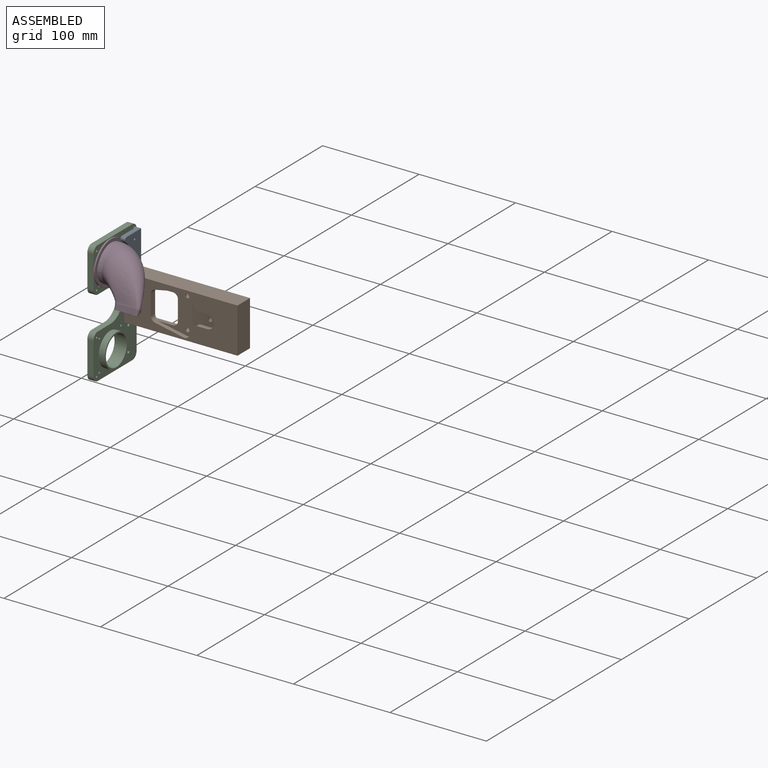
[diagram: assembled view]
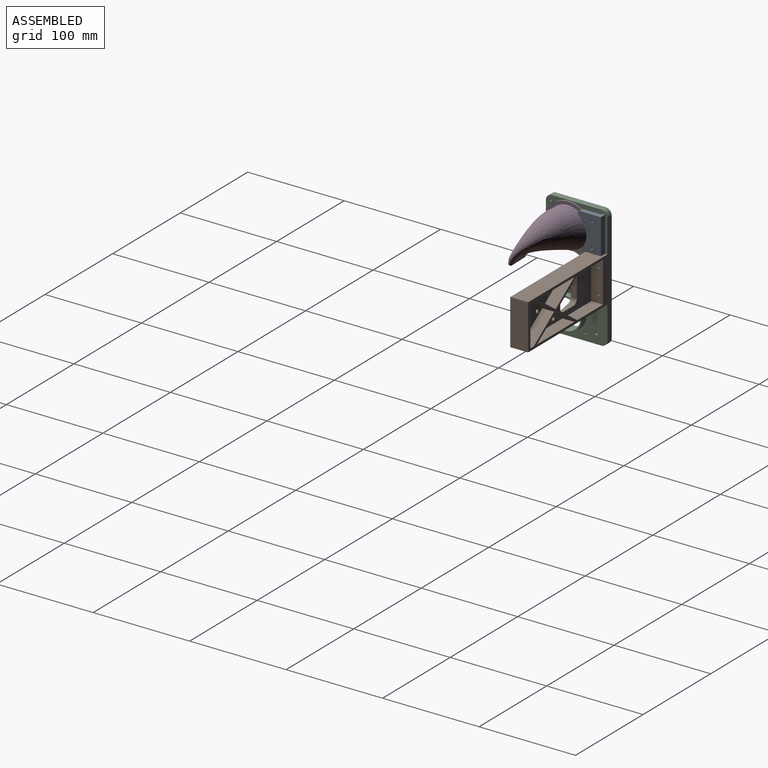
[diagram: assembled view, second angle]
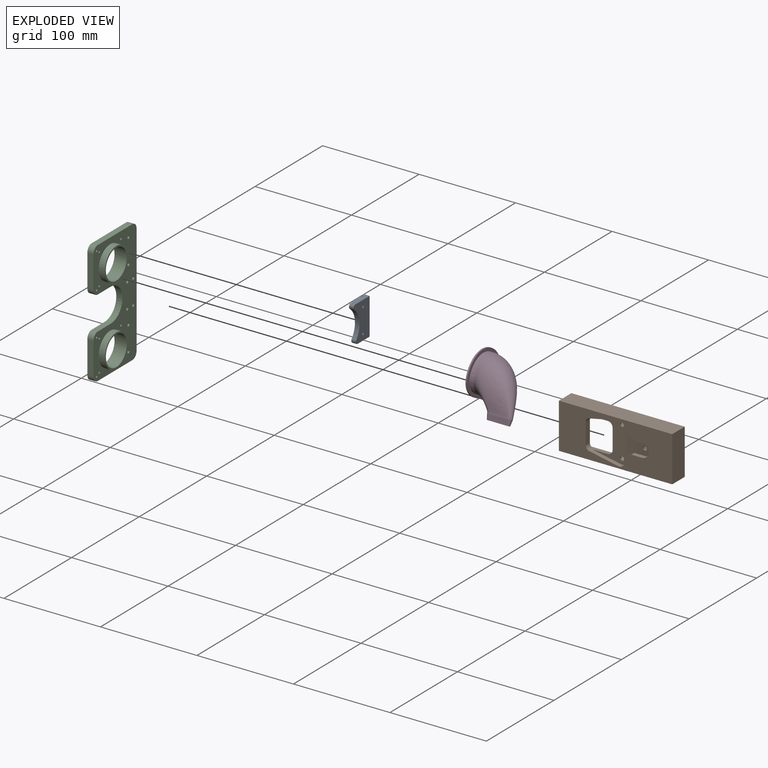
[diagram: exploded view]
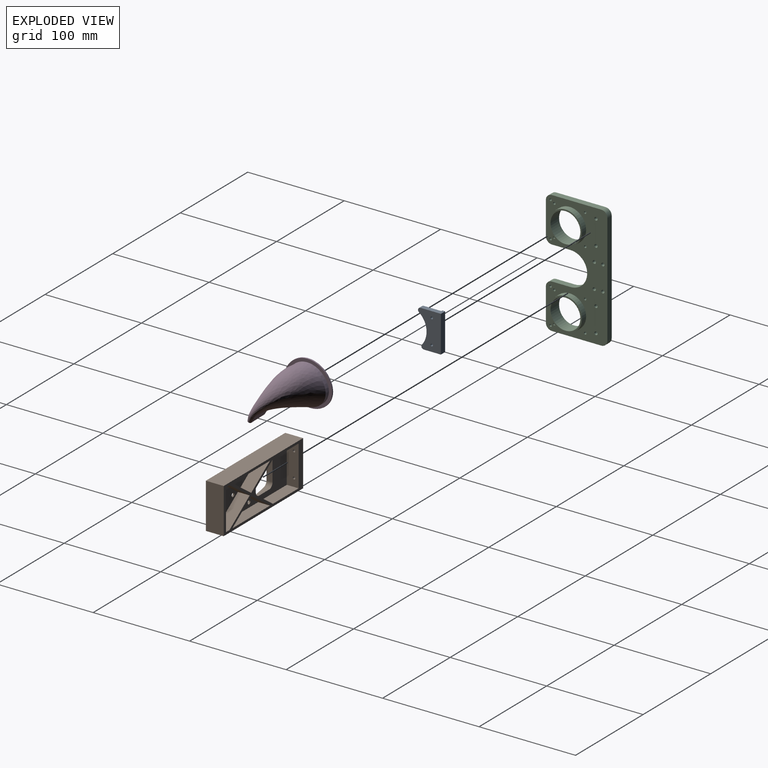
[diagram: exploded view, second angle]
ASSEMBLY  parts=4 mates=4
PART A: 12 faces, bbox 38.2x23.7x6.4 mm
  f0: cylinder r=20.67mm len=29.49mm, axis (0,0,-1), area 158.8mm2, adj f4,f6,f7,f9
  f1: plane 17.69x6.35mm, normal (-1,0,0), area 89.6mm2, adj f2,f4,f5,f6,f8,f9
  f2: plane 38.2x6.35mm, normal (0,-1,0), area 242.5mm2, adj f1,f3,f4,f5
  f3: plane 21.18x6.35mm, normal (1,0,0), area 106.3mm2, adj f2,f4,f5,f7,f8,f9
  f4: plane 38.2x23.72mm, normal (0,0,1), area 676.1mm2, adj f0,f1,f2,f3,f6,f7,f10,f11
  f5: plane 38.2x2.98mm, normal (0,0,-1), area 113.8mm2, adj f1,f2,f3,f8
  f6: cylinder r=2.54mm len=4.8mm, axis (0,0,-1), area 27.6mm2, adj f0,f1,f4,f9
  f7: cylinder r=2.54mm len=4.8mm, axis (0,0,-1), area 30.2mm2, adj f0,f3,f4,f9
  f8: plane 38.2x1.55mm, normal (0,1,0), area 59.2mm2, adj f1,f3,f5,f9
  f9: plane 38.2x20.74mm, normal (0,0,-1), area 562.2mm2, adj f0,f1,f3,f6,f7,f8,f10,f11
  f10: cylinder r=1.21mm len=4.8mm, axis (0,0,1), area 36.4mm2, adj f4,f9
  f11: cylinder r=1.21mm len=4.8mm, axis (0,0,1), area 36.4mm2, adj f4,f9
PART B: 55 faces, bbox 117.5x18.5x47 mm
  f0: plane 27.81x19.47mm, normal (0.57,0,0.82), area 415.9mm2, adj f1,f2,f18,f49
  f1: plane 55.62x12.25mm, normal (0,0,-1), area 681.4mm2, adj f0,f2,f18,f49
  f2: plane 27.81x19.47mm, normal (-0.57,0,0.82), area 415.9mm2, adj f0,f1,f18,f49
  f3: plane 27.81x19.47mm, normal (0.57,0,-0.82), area 415.9mm2, adj f4,f5,f15,f18
  f4: plane 27.81x19.47mm, normal (-0.57,0,-0.82), area 415.9mm2, adj f3,f5,f15,f18
  f5: plane 55.62x12.25mm, normal (0,0,1), area 681.4mm2, adj f3,f4,f15,f18
  f6: plane 38x12.25mm, normal (0,0,1), area 465.5mm2, adj f13,f16,f18,f48
  f7: plane 12.25x5.21mm, normal (0,0,1), area 63.8mm2, adj f8,f14,f17,f18
  f8: plane 29.99x21mm, normal (0.57,0,0.82), area 448.5mm2, adj f7,f9,f17,f18
  f9: plane 29.99x21mm, normal (0.57,0,-0.82), area 448.5mm2, adj f8,f10,f17,f18
  f10: plane 12.25x5.21mm, normal (0,0,-1), area 63.8mm2, adj f9,f14,f17,f18
  f11: plane 38x12.25mm, normal (0,0,-1), area 465.5mm2, adj f12,f16,f18,f48
  f12: plane 29.99x21mm, normal (-0.57,0,-0.82), area 448.5mm2, adj f11,f13,f16,f18
  f13: plane 29.99x21mm, normal (-0.57,0,0.82), area 448.5mm2, adj f6,f12,f16,f18
  f14: plane 42x12.25mm, normal (-1,0,0), area 514.5mm2, adj f7,f10,f17,f18
  f15: plane 55.62x19.47mm, normal (0,1,0), area 529mm2, adj f3,f4,f5,f20
  f16: plane 67.99x42mm, normal (0,1,0), area 1481.7mm2, adj f6,f11,f12,f13,f22,f23,f24,f25
  f17: plane 42x35.2mm, normal (0,1,0), area 836mm2, adj f7,f8,f9,f10,f14,f21
  f18: plane 117.5x47mm, normal (0,1,0), area 1364.9mm2, adj f0,f1,f2,f3,f4,f5,f6,f7
  f19: cylinder r=2mm len=4mm, axis (0,1,0), area 22mm2, adj f41,f49
  f20: cylinder r=2mm len=4mm, axis (0,1,0), area 22mm2, adj f15,f41
  f21: cylinder r=2mm len=4mm, axis (0,1,0), area 22mm2, adj f17,f41
  f22: plane 21x1.75mm, normal (-1,0,0), area 36.8mm2, adj f16,f23,f26,f41
  f23: cylinder r=4.97mm len=4.99mm, axis (0,1,0), area 13.7mm2, adj f16,f22,f24,f41
  f24: plane 15.77x1.75mm, normal (0,0,-1), area 27.6mm2, adj f16,f23,f40,f41
  f25: plane 15.77x1.75mm, normal (0,0,1), area 27.6mm2, adj f16,f26,f28,f41
  f26: cylinder r=4.97mm len=4.99mm, axis (0,1,0), area 13.7mm2, adj f16,f22,f25,f41
  f27: plane 21x6.25mm, normal (1,0,0), area 131.2mm2, adj f16,f28,f40,f54
  f28: cylinder r=5mm len=6.25mm, axis (0,1,0), area 42.9mm2, adj f16,f25,f27,f29,f54
  f29: plane 29.64x5.99mm, normal (0.2,0,0.98), area 136.1mm2, adj f28,f30,f41,f54
  f30: cylinder r=5.6mm len=5.96mm, axis (0,1,0), area 31.4mm2, adj f29,f31,f41,f54
  f31: plane 9.95x5.74mm, normal (-0.87,0,0.5), area 51.7mm2, adj f30,f32,f41,f54
  f32: cylinder r=3.5mm len=4.5mm, axis (0,1,0), area 16.5mm2, adj f31,f33,f41,f54
  f33: plane 10.03x4.5mm, normal (0,0,1), area 45.1mm2, adj f32,f34,f41,f54
  f34: cylinder r=7mm len=14mm, axis (0,1,0), area 99mm2, adj f33,f35,f41,f54
  f35: plane 10.05x4.5mm, normal (0,0,-1), area 45.2mm2, adj f34,f36,f41,f54
  f36: cylinder r=3.5mm len=4.5mm, axis (0,1,0), area 16.5mm2, adj f35,f37,f41,f54
  f37: plane 10.35x5.98mm, normal (-0.87,0,-0.5), area 53.8mm2, adj f36,f38,f41,f54
  f38: cylinder r=5.6mm len=5.26mm, axis (0,1,0), area 27.2mm2, adj f37,f39,f41,f54
  f39: plane 30.08x6.06mm, normal (0.2,0,-0.98), area 138.1mm2, adj f38,f40,f41,f54
  f40: cylinder r=5mm len=6.25mm, axis (0,1,0), area 42.9mm2, adj f16,f24,f27,f39,f54
  f41: plane 61.4x43mm, normal (0,-1,0), area 1090.4mm2, adj f19,f20,f21,f22,f23,f24,f25,f26
  f42: cylinder r=1.21mm len=6.65mm, axis (1,0,0), area 50.4mm2, adj f48,f50
  f43: cylinder r=1.21mm len=8mm, axis (1,0,0), area 60.6mm2, adj f44,f50
  f44: plane 2.41x2.41mm, normal (-1,0,0), area 4.6mm2, adj f43
  f45: cylinder r=1.21mm len=6.65mm, axis (1,0,0), area 50.4mm2, adj f48,f50
  f46: cylinder r=1.21mm len=8mm, axis (1,0,0), area 60.6mm2, adj f47,f50
  f47: plane 2.41x2.41mm, normal (-1,0,0), area 4.6mm2, adj f46
  f48: plane 42x12.25mm, normal (1,0,0), area 505.4mm2, adj f6,f11,f16,f18,f42,f45
  f49: plane 55.62x19.47mm, normal (0,1,0), area 529mm2, adj f0,f1,f2,f19
  f50: plane 47x18.5mm, normal (-1,0,0), area 851.2mm2, adj f18,f42,f43,f45,f46,f51,f53,f54
  f51: plane 117.5x18.5mm, normal (0,0,-1), area 2173.7mm2, adj f18,f50,f52,f54
  f52: plane 47x18.5mm, normal (1,0,0), area 869.5mm2, adj f18,f51,f53,f54
  f53: plane 117.5x18.5mm, normal (0,0,1), area 2173.8mm2, adj f18,f50,f52,f54
  f54: plane 117.5x47mm, normal (0,-1,0), area 3650.3mm2, adj f27,f28,f29,f30,f31,f32,f33,f34
PART C: 42 faces, bbox 127.4x63.8x12.7 mm
  f0: plane 127.38x63.83mm, normal (0,0,-1), area 5089.5mm2, adj f2,f3,f4,f5,f6,f7,f8,f9
  f1: plane 127.38x63.83mm, normal (0,0,1), area 4778.2mm2, adj f2,f3,f4,f5,f6,f7,f8,f9
  f2: cylinder r=1.21mm len=6.35mm, axis (0,0,1), area 48.1mm2, adj f0,f1
  f3: cylinder r=1.21mm len=6.35mm, axis (0,0,1), area 48.1mm2, adj f0,f1
  f4: cylinder r=1.21mm len=6.35mm, axis (0,0,1), area 48.1mm2, adj f0,f1
  f5: cylinder r=1.21mm len=6.35mm, axis (0,0,1), area 48.1mm2, adj f0,f1
  f6: cylinder r=1.21mm len=6.35mm, axis (0,0,1), area 48.1mm2, adj f0,f1
  f7: cylinder r=1.21mm len=6.35mm, axis (0,0,1), area 48.1mm2, adj f0,f1
  f8: cylinder r=1.21mm len=6.35mm, axis (0,0,1), area 48.1mm2, adj f0,f1
  f9: cylinder r=1.21mm len=6.35mm, axis (0,0,1), area 48.1mm2, adj f0,f1
  f10: cylinder r=17.02mm len=34.04mm, axis (0,0,-1), area 679mm2, adj f1,f11
  f11: plane 34.04x34.04mm, normal (0,0,1), area 155.7mm2, adj f10,f12
  f12: cylinder r=15.49mm len=30.99mm, axis (0,0,-1), area 1236.4mm2, adj f0,f11
  f13: cylinder r=17.02mm len=34.04mm, axis (0,0,-1), area 679mm2, adj f1,f14
  f14: plane 34.04x34.04mm, normal (0,0,1), area 155.7mm2, adj f13,f15
  f15: cylinder r=15.49mm len=30.99mm, axis (0,0,-1), area 1236.4mm2, adj f0,f14
  f16: plane 33.66x6.35mm, normal (0,1,0), area 213.7mm2, adj f0,f1,f39,f40
  f17: plane 51.13x6.35mm, normal (1,0,0), area 324.7mm2, adj f0,f1,f37,f40
  f18: plane 114.68x6.35mm, normal (0,-1,0), area 728.2mm2, adj f0,f1,f36,f37
  f19: plane 51.13x6.35mm, normal (-1,0,0), area 324.7mm2, adj f0,f1,f36,f41
  f20: plane 33.66x6.35mm, normal (0,1,0), area 213.7mm2, adj f0,f1,f38,f41
  f21: plane 19.19x6.35mm, normal (1,0,0), area 121.9mm2, adj f0,f1,f22,f38
  f22: cylinder r=17.34mm len=34.67mm, axis (0,0,-1), area 345.8mm2, adj f0,f1,f21,f23
  f23: plane 19.19x6.35mm, normal (-1,0,0), area 121.9mm2, adj f0,f1,f22,f39
  f24: cylinder r=1.65mm len=6.35mm, axis (0,0,-1), area 65.9mm2, adj f0,f1
  f25: cylinder r=1.65mm len=6.35mm, axis (0,0,-1), area 65.9mm2, adj f0,f1
  f26: cylinder r=1.65mm len=6.35mm, axis (0,0,-1), area 65.9mm2, adj f0,f1
  f27: cylinder r=1.65mm len=6.35mm, axis (0,0,-1), area 65.9mm2, adj f0,f1
  f28: cylinder r=1.65mm len=6.35mm, axis (0,0,-1), area 65.9mm2, adj f0,f1
  f29: cylinder r=1.65mm len=6.35mm, axis (0,0,-1), area 65.9mm2, adj f0,f1
  f30: cylinder r=1.65mm len=6.35mm, axis (0,0,-1), area 65.9mm2, adj f0,f1
  f31: cylinder r=1.65mm len=6.35mm, axis (0,0,-1), area 65.9mm2, adj f0,f1
  f32: cylinder r=1.21mm len=6.35mm, axis (0,0,1), area 48.1mm2, adj f0,f1
  f33: cylinder r=1.21mm len=6.35mm, axis (0,0,1), area 48.1mm2, adj f0,f1
  f34: cylinder r=1.21mm len=6.35mm, axis (0,0,1), area 48.1mm2, adj f0,f1
  f35: cylinder r=1.21mm len=6.35mm, axis (0,0,1), area 48.1mm2, adj f0,f1
  f36: cylinder r=6.35mm len=6.35mm, axis (0,0,-1), area 63.3mm2, adj f0,f1,f18,f19
  f37: cylinder r=6.35mm len=6.35mm, axis (0,0,-1), area 63.3mm2, adj f0,f1,f17,f18
  f38: cylinder r=6.35mm len=6.35mm, axis (0,0,-1), area 63.3mm2, adj f0,f1,f20,f21
  f39: cylinder r=6.35mm len=6.35mm, axis (0,0,-1), area 63.3mm2, adj f0,f1,f16,f23
  f40: cylinder r=6.35mm len=6.35mm, axis (0,0,-1), area 63.3mm2, adj f0,f1,f16,f17
  f41: cylinder r=6.35mm len=6.35mm, axis (0,0,-1), area 63.3mm2, adj f0,f1,f19,f20
PART D: 12 faces, bbox 81x68.3x68.2 mm
  f0: extruded ~49.59x45.17mm, area 226.6mm2, adj f4,f11
  f1: bspline ~68.09x58.58mm, area 3373.6mm2, adj f3,f7,f8
  f2: bspline ~36.72x33.32mm, area 498.5mm2, adj f5,f6,f9
  f3: extruded ~43.01x38.58mm, area 617.1mm2, adj f1,f8,f11
  f4: plane 49.77x45.33mm, normal (0,0,-1), area 810.7mm2, adj f0,f10
  f5: plane 23.43x3.65mm, normal (-0.93,0.36,-0.01), area 28.3mm2, adj f2,f6,f7
  f6: bspline ~73.88x61.66mm, area 3892mm2, adj f2,f5,f9
  f7: bspline ~25.58x7.26mm, area 316.7mm2, adj f1,f5,f8
  f8: bspline ~52.2x50.99mm, area 1213mm2, adj f1,f3,f7
  f9: plane 40.15x36.46mm, normal (0,0,1), area 151mm2, adj f2,f6,f10
  f10: cylinder r=17.27mm len=34.54mm, axis (0,0,-1), area 689.1mm2, adj f4,f9
  f11: plane 49.77x45.33mm, normal (0,0,1), area 456.5mm2, adj f0,f3
PLACE A rot(axis=(0.71,0,0.71),180deg) t=(55.29,32.56,-15.84)mm
PLACE B t=(77.07,37.33,-15.84)mm
PLACE C rot(axis=(0.71,0,0.71),180deg) t=(55.29,32.56,-15.84)mm
PLACE D rot(axis=(0.71,0,0.71),180deg) t=(55.29,32.56,-15.84)mm
MATE revolute D.f10 <-> C.f13  axis (-1,0,0) through (18.32,16.68,24.68)mm
MATE slider C.f31 <-> A.f10  axis (-1,0,0) through (18.32,43.89,37.8)mm
MATE planar A.f5 <-> C.f1  axis (-1,0,0) through (18.32,51.92,25.1)mm
MATE revolute B.f45 <-> C.f27  axis (-1,0,0) through (18.32,51,-28.54)mm
